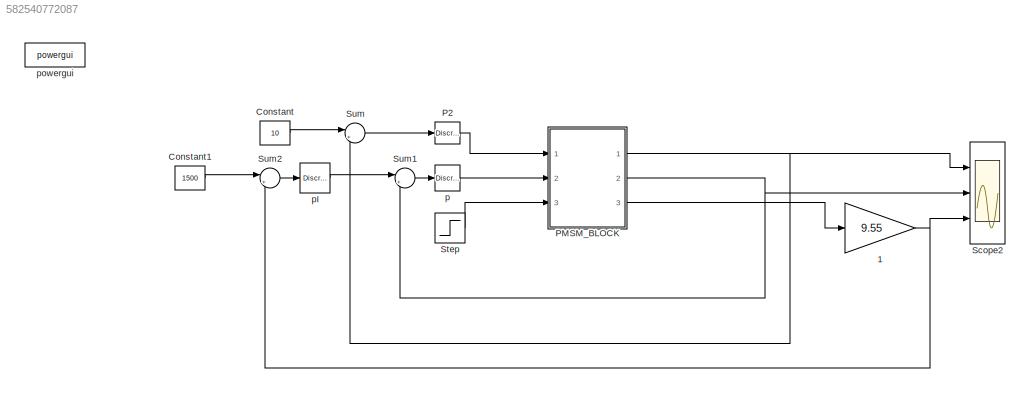
MODEL slx_582540772087
KIND model
BLOCK [Gain] 1
  Gain = 9.55
  OutDataTypeStr = Inherit: Inherit via internal rule
  ParamDataTypeStr = Inherit: Inherit via internal rule
  SaturateOnIntegerOverflow = off
BLOCK [Constant] Constant
  Value = 10
BLOCK [Constant] Constant1
  Value = 1500
BLOCK [Reference] P2   REF=powerlib_extras/Discrete 
Control Blocks/Discrete
PI Controller
  Init = 0
  Ki = 7187.5
  Kp = 21.25
  Par_Limits = [250 -250]
  Ports = [1, 1]
  SourceBlock = powerlib_extras/Discrete \nControl Blocks/Discrete\nPI Controller
  SourceType = Discrete PI Controller
  Ts = 50e-6
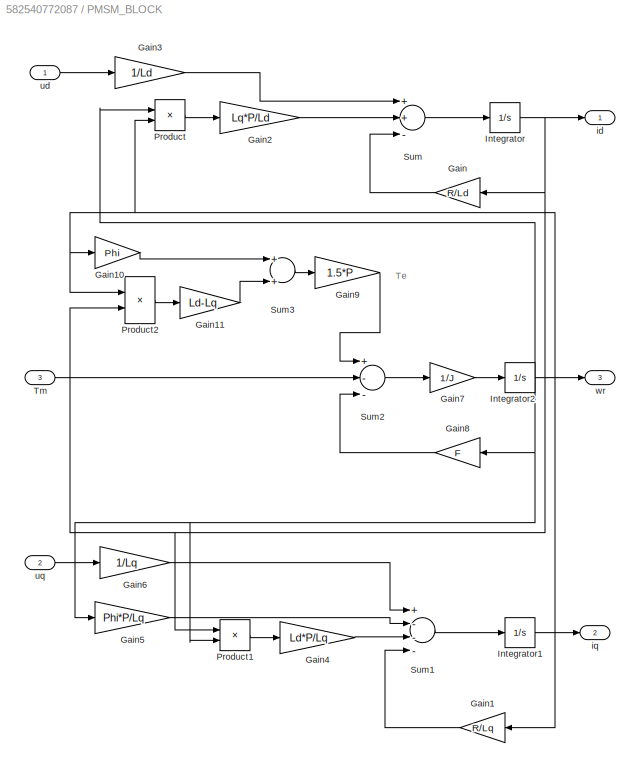
BLOCK [SubSystem] PMSM_BLOCK
  Ports = [3, 3]
  RequestExecContextInheritance = off
BLOCK [Gain] PMSM_BLOCK/Gain
  Gain = R/Ld
  OutDataTypeStr = Inherit: Inherit via internal rule
  ParamDataTypeStr = Inherit: Inherit via internal rule
  SaturateOnIntegerOverflow = off
BLOCK [Gain] PMSM_BLOCK/Gain1
  Gain = R/Lq
  OutDataTypeStr = Inherit: Inherit via internal rule
  ParamDataTypeStr = Inherit: Inherit via internal rule
  SaturateOnIntegerOverflow = off
BLOCK [Gain] PMSM_BLOCK/Gain10
  Gain = Phi
  OutDataTypeStr = Inherit: Inherit via internal rule
  ParamDataTypeStr = Inherit: Inherit via internal rule
  SaturateOnIntegerOverflow = off
BLOCK [Gain] PMSM_BLOCK/Gain11
  Gain = Ld-Lq
  OutDataTypeStr = Inherit: Inherit via internal rule
  ParamDataTypeStr = Inherit: Inherit via internal rule
  SaturateOnIntegerOverflow = off
BLOCK [Gain] PMSM_BLOCK/Gain2
  Gain = Lq*P/Ld
  OutDataTypeStr = Inherit: Inherit via internal rule
  ParamDataTypeStr = Inherit: Inherit via internal rule
  SaturateOnIntegerOverflow = off
BLOCK [Gain] PMSM_BLOCK/Gain3
  Gain = 1/Ld
  OutDataTypeStr = Inherit: Inherit via internal rule
  ParamDataTypeStr = Inherit: Inherit via internal rule
  SaturateOnIntegerOverflow = off
BLOCK [Gain] PMSM_BLOCK/Gain4
  Gain = Ld*P/Lq
  OutDataTypeStr = Inherit: Inherit via internal rule
  ParamDataTypeStr = Inherit: Inherit via internal rule
  SaturateOnIntegerOverflow = off
BLOCK [Gain] PMSM_BLOCK/Gain5
  Gain = Phi*P/Lq
  OutDataTypeStr = Inherit: Inherit via internal rule
  ParamDataTypeStr = Inherit: Inherit via internal rule
  SaturateOnIntegerOverflow = off
BLOCK [Gain] PMSM_BLOCK/Gain6
  Gain = 1/Lq
  OutDataTypeStr = Inherit: Inherit via internal rule
  ParamDataTypeStr = Inherit: Inherit via internal rule
  SaturateOnIntegerOverflow = off
BLOCK [Gain] PMSM_BLOCK/Gain7
  Gain = 1/J
  OutDataTypeStr = Inherit: Inherit via internal rule
  ParamDataTypeStr = Inherit: Inherit via internal rule
  SaturateOnIntegerOverflow = off
BLOCK [Gain] PMSM_BLOCK/Gain8
  Gain = F
  OutDataTypeStr = Inherit: Inherit via internal rule
  ParamDataTypeStr = Inherit: Inherit via internal rule
  SaturateOnIntegerOverflow = off
BLOCK [Gain] PMSM_BLOCK/Gain9
  Gain = 1.5*P
  OutDataTypeStr = Inherit: Inherit via internal rule
  ParamDataTypeStr = Inherit: Inherit via internal rule
  SaturateOnIntegerOverflow = off
BLOCK [Integrator] PMSM_BLOCK/Integrator
  Ports = [1, 1]
BLOCK [Integrator] PMSM_BLOCK/Integrator1
  Ports = [1, 1]
BLOCK [Integrator] PMSM_BLOCK/Integrator2
  Ports = [1, 1]
BLOCK [Product] PMSM_BLOCK/Product
  InputSameDT = off
  OutDataTypeStr = Inherit: Inherit via internal rule
  Ports = [2, 1]
  SaturateOnIntegerOverflow = off
BLOCK [Product] PMSM_BLOCK/Product1
  InputSameDT = off
  OutDataTypeStr = Inherit: Inherit via internal rule
  Ports = [2, 1]
  SaturateOnIntegerOverflow = off
BLOCK [Product] PMSM_BLOCK/Product2
  InputSameDT = off
  OutDataTypeStr = Inherit: Inherit via internal rule
  Ports = [2, 1]
  SaturateOnIntegerOverflow = off
BLOCK [Sum] PMSM_BLOCK/Sum
  InputSameDT = off
  Inputs = ++-
  OutDataTypeStr = Inherit: Inherit via internal rule
  Ports = [3, 1]
  SaturateOnIntegerOverflow = off
BLOCK [Sum] PMSM_BLOCK/Sum1
  InputSameDT = off
  Inputs = +---
  OutDataTypeStr = Inherit: Inherit via internal rule
  Ports = [4, 1]
  SaturateOnIntegerOverflow = off
BLOCK [Sum] PMSM_BLOCK/Sum2
  InputSameDT = off
  Inputs = +--
  OutDataTypeStr = Inherit: Inherit via internal rule
  Ports = [3, 1]
  SaturateOnIntegerOverflow = off
BLOCK [Sum] PMSM_BLOCK/Sum3
  InputSameDT = off
  OutDataTypeStr = Inherit: Inherit via internal rule
  Ports = [2, 1]
  SaturateOnIntegerOverflow = off
BLOCK [Inport] PMSM_BLOCK/Tm
  IconDisplay = Port number
  Port = 3
BLOCK [Outport] PMSM_BLOCK/id
  IconDisplay = Port number
BLOCK [Outport] PMSM_BLOCK/iq
  IconDisplay = Port number
  Port = 2
BLOCK [Inport] PMSM_BLOCK/ud
  IconDisplay = Port number
BLOCK [Inport] PMSM_BLOCK/uq
  IconDisplay = Port number
  Port = 2
BLOCK [Outport] PMSM_BLOCK/wr
  IconDisplay = Port number
  Port = 3
BLOCK [Scope] Scope2
  DataFormat = StructureWithTime
  Floating = off
  LimitDataPoints = off
  NumInputPorts = 3
  Ports = [3]
  SampleTime = 0
  ShowLegends = off
  YMax = 1685~5~5
  YMin = 1575~-5~-5
BLOCK [Step] Step
  After = 10
  SampleTime = 0
  Time = 0.1
BLOCK [Sum] Sum
  IconShape = round
  InputSameDT = off
  Inputs = |+-
  OutDataTypeStr = Inherit: Inherit via internal rule
  Ports = [2, 1]
  SaturateOnIntegerOverflow = off
BLOCK [Sum] Sum1
  IconShape = round
  InputSameDT = off
  Inputs = |+-
  OutDataTypeStr = Inherit: Inherit via internal rule
  Ports = [2, 1]
  SaturateOnIntegerOverflow = off
BLOCK [Sum] Sum2
  IconShape = round
  InputSameDT = off
  Inputs = |+-
  OutDataTypeStr = Inherit: Inherit via internal rule
  Ports = [2, 1]
  SaturateOnIntegerOverflow = off
BLOCK [Reference] p  REF=powerlib_extras/Discrete 
Control Blocks/Discrete
PI Controller
  Init = 0
  Ki = 7187.5
  Kp = 21.25
  Par_Limits = [300 -200]
  Ports = [1, 1]
  SourceBlock = powerlib_extras/Discrete \nControl Blocks/Discrete\nPI Controller
  SourceType = Discrete PI Controller
  Ts = 50e-6
BLOCK [Reference] pI   REF=powerlib_extras/Discrete 
Control Blocks/Discrete
PI Controller
  Init = 0
  Ki = 1
  Kp = 0.06
  Par_Limits = [300 -300]
  Ports = [1, 1]
  SourceBlock = powerlib_extras/Discrete \nControl Blocks/Discrete\nPI Controller
  SourceType = Discrete PI Controller
  Ts = 50e-6
BLOCK [Reference] powergui  REF=powerlib/powergui
  DisableRonSwitches = off
  DisableSnubberDevices = off
  DisableVfSwitches = off
  DisplayEquations = off
  DisplayStyle = 1
  EnableUseOfTLC = off
  ErrMax = 1e-4
  Frange = [0:2:500]
  FreqAxis = off
  FunctionMessages = off
  HookPort = off
  Interpol = off
  Iterations = 50
  MaxFrequency = 1000
  Pbase = 100e6
  Ports = []
  ResistiveCurrentMeasurement = off
  RestoreLinks = warning
  RmsSteady = 1
  SPID = off
  SampleTime = 50e-6
  ShowGrid = off
  SolverType = Tustin/Backward Euler (TBE)
  SourceBlock = powerlib/powergui
  SourceType = PSB option menu block
  StartTime = 0.0
  SwTol = 0
  Ts = 0
  UnitsV = kV
  UnitsW = MW
  UserDataPersistent = on
  Xlog = on
  Ylog = off
  ZoomFFT = off
  cycles = 1
  display = off
  echomessages = off
  frequency = 60
  frequencyindice = 0
  frequencyindicesteady = 1
  fundamental = 60
  methode = off
  save = off
  structure = 0
  variable = ZData
  x0status = blocks
ANNOTATION PMSM_BLOCK: Te
NET 1:1 -> Scope2:3, Sum2:2
LINE Constant1:1 -> Sum2:1
LINE Constant:1 -> Sum:1
LINE P2 :1 -> PMSM_BLOCK:1
LINE PMSM_BLOCK/Gain10:1 -> PMSM_BLOCK/Sum3:1
LINE PMSM_BLOCK/Gain11:1 -> PMSM_BLOCK/Sum3:2
LINE PMSM_BLOCK/Gain1:1 -> PMSM_BLOCK/Sum1:4
LINE PMSM_BLOCK/Gain2:1 -> PMSM_BLOCK/Sum:2
LINE PMSM_BLOCK/Gain3:1 -> PMSM_BLOCK/Sum:1
LINE PMSM_BLOCK/Gain4:1 -> PMSM_BLOCK/Sum1:3
LINE PMSM_BLOCK/Gain5:1 -> PMSM_BLOCK/Sum1:2
LINE PMSM_BLOCK/Gain6:1 -> PMSM_BLOCK/Sum1:1
LINE PMSM_BLOCK/Gain7:1 -> PMSM_BLOCK/Integrator2:1
LINE PMSM_BLOCK/Gain8:1 -> PMSM_BLOCK/Sum2:3
LINE PMSM_BLOCK/Gain9:1 -> PMSM_BLOCK/Sum2:1
LINE PMSM_BLOCK/Gain:1 -> PMSM_BLOCK/Sum:3
NET PMSM_BLOCK/Integrator1:1 -> PMSM_BLOCK/Gain10:1, PMSM_BLOCK/Gain1:1, PMSM_BLOCK/Product2:1, PMSM_BLOCK/Product:2, PMSM_BLOCK/iq:1
NET PMSM_BLOCK/Integrator2:1 -> PMSM_BLOCK/Gain5:1, PMSM_BLOCK/Gain8:1, PMSM_BLOCK/Product1:2, PMSM_BLOCK/Product:1, PMSM_BLOCK/wr:1
NET PMSM_BLOCK/Integrator:1 -> PMSM_BLOCK/Gain:1, PMSM_BLOCK/Product1:1, PMSM_BLOCK/Product2:2, PMSM_BLOCK/id:1
LINE PMSM_BLOCK/Product1:1 -> PMSM_BLOCK/Gain4:1
LINE PMSM_BLOCK/Product2:1 -> PMSM_BLOCK/Gain11:1
LINE PMSM_BLOCK/Product:1 -> PMSM_BLOCK/Gain2:1
LINE PMSM_BLOCK/Sum1:1 -> PMSM_BLOCK/Integrator1:1
LINE PMSM_BLOCK/Sum2:1 -> PMSM_BLOCK/Gain7:1
LINE PMSM_BLOCK/Sum3:1 -> PMSM_BLOCK/Gain9:1
LINE PMSM_BLOCK/Sum:1 -> PMSM_BLOCK/Integrator:1
LINE PMSM_BLOCK/Tm:1 -> PMSM_BLOCK/Sum2:2
LINE PMSM_BLOCK/ud:1 -> PMSM_BLOCK/Gain3:1
LINE PMSM_BLOCK/uq:1 -> PMSM_BLOCK/Gain6:1
NET PMSM_BLOCK:1 -> Scope2:1, Sum:2
NET PMSM_BLOCK:2 -> Scope2:2, Sum1:2
LINE PMSM_BLOCK:3 -> 1:1
LINE Step:1 -> PMSM_BLOCK:3
LINE Sum1:1 -> p:1
LINE Sum2:1 -> pI :1
LINE Sum:1 -> P2 :1
LINE p:1 -> PMSM_BLOCK:2
LINE pI :1 -> Sum1:1
note: NET lines group one-source signal fan-out (src -> all destinations, sorted); 1:1 wires keep LINE
